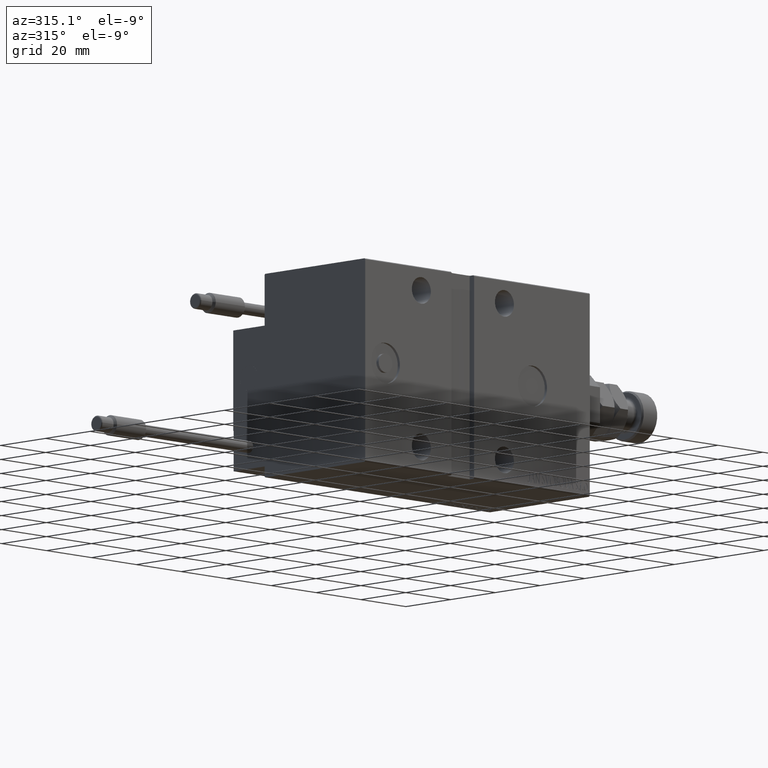
[diagram: clean part render]
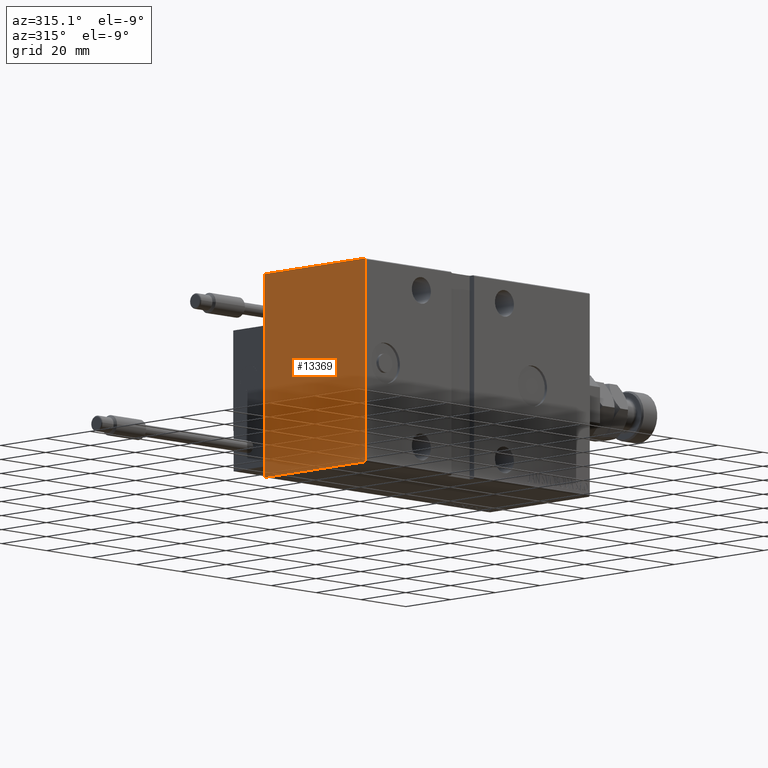
[diagram: same view with one face highlighted and labeled with its STEP entity id]
A machine part, auxiliary view. The second image highlights one B-rep face of the part: STEP entity #13369.
In plain terms, the highlighted planar face has unit normal (-1, 0, 0).
Its self-contained STEP definition (entity closure, byte-faithful):
#225 = DIRECTION ( 'NONE',  ( 0.000000000000000000, -0.7071067811865474617, -0.7071067811865474617 ) ) ;
#262 = CARTESIAN_POINT ( 'NONE',  ( 100.0000000000000000, 27.34999999999999076, -27.34999999999999076 ) ) ;
#1482 = EDGE_CURVE ( 'NONE', #30277, #32996, #15581, .T. ) ;
#1750 = DIRECTION ( 'NONE',  ( 0.000000000000000000, 0.000000000000000000, -1.000000000000000000 ) ) ;
#3538 = CARTESIAN_POINT ( 'NONE',  ( 100.0000000000000000, -27.34999999999998721, -27.34999999999998721 ) ) ;
#4229 = VERTEX_POINT ( 'NONE', #44923 ) ;
#4296 = VERTEX_POINT ( 'NONE', #21344 ) ;
#4498 = CARTESIAN_POINT ( 'NONE',  ( 100.0000000000000000, 22.19999999999997442, 32.50000000000000711 ) ) ;
#5071 = CARTESIAN_POINT ( 'NONE',  ( 100.0000000000000000, 22.49999999999999645, 32.50000000000000711 ) ) ;
#5830 = ORIENTED_EDGE ( 'NONE', *, *, #15563, .T. ) ;
#8366 = ORIENTED_EDGE ( 'NONE', *, *, #13349, .T. ) ;
#8481 = VERTEX_POINT ( 'NONE', #47297 ) ;
#9298 = CARTESIAN_POINT ( 'NONE',  ( 100.0000000000000000, -22.49999999999999645, -32.19999999999998153 ) ) ;
#11895 = ORIENTED_EDGE ( 'NONE', *, *, #28161, .T. ) ;
#12038 = DIRECTION ( 'NONE',  ( -0.000000000000000000, 0.7071067811865474617, 0.7071067811865474617 ) ) ;
#13349 = EDGE_CURVE ( 'NONE', #4229, #39744, #40036, .T. ) ;
#13369 = ADVANCED_FACE ( 'NONE', ( #29270 ), #24546, .T. ) ;
#14944 = ORIENTED_EDGE ( 'NONE', *, *, #1482, .T. ) ;
#14962 = VERTEX_POINT ( 'NONE', #50374 ) ;
#15563 = EDGE_CURVE ( 'NONE', #32996, #4296, #33126, .T. ) ;
#15581 = LINE ( 'NONE', #3538, #25132 ) ;
#15589 = CARTESIAN_POINT ( 'NONE',  ( 100.0000000000000000, -22.49999999999999645, 32.50000000000000000 ) ) ;
#15845 = DIRECTION ( 'NONE',  ( 0.000000000000000000, 0.000000000000000000, -1.000000000000000000 ) ) ;
#16135 = EDGE_CURVE ( 'NONE', #4296, #8481, #28816, .T. ) ;
#18341 = AXIS2_PLACEMENT_3D ( 'NONE', #37669, #40555, #1750 ) ;
#19713 = EDGE_CURVE ( 'NONE', #14962, #31391, #25084, .T. ) ;
#20896 = DIRECTION ( 'NONE',  ( -0.000000000000000000, -0.7071067811865392461, 0.7071067811865556774 ) ) ;
#21054 = DIRECTION ( 'NONE',  ( 0.000000000000000000, -1.000000000000000000, -1.541976423090495633E-16 ) ) ;
#21190 = CARTESIAN_POINT ( 'NONE',  ( 100.0000000000000000, 22.50000000000000355, -32.50000000000000000 ) ) ;
#21344 = CARTESIAN_POINT ( 'NONE',  ( 100.0000000000000000, 22.19999999999996732, -32.50000000000000000 ) ) ;
#23038 = CARTESIAN_POINT ( 'NONE',  ( 100.0000000000000000, -22.19999999999997442, -32.50000000000000000 ) ) ;
#24546 = PLANE ( 'NONE',  #18341 ) ;
#25084 = LINE ( 'NONE', #36667, #32835 ) ;
#25132 = VECTOR ( 'NONE', #43629, 1000.000000000000114 ) ;
#26010 = ORIENTED_EDGE ( 'NONE', *, *, #16135, .T. ) ;
#27411 = ORIENTED_EDGE ( 'NONE', *, *, #19713, .T. ) ;
#27646 = VECTOR ( 'NONE', #12038, 1000.000000000000114 ) ;
#28161 = EDGE_CURVE ( 'NONE', #31391, #30277, #35524, .T. ) ;
#28816 = LINE ( 'NONE', #262, #27646 ) ;
#29270 = FACE_OUTER_BOUND ( 'NONE', #38881, .T. ) ;
#30277 = VERTEX_POINT ( 'NONE', #9298 ) ;
#30476 = ORIENTED_EDGE ( 'NONE', *, *, #32440, .T. ) ;
#31391 = VERTEX_POINT ( 'NONE', #43464 ) ;
#31809 = EDGE_CURVE ( 'NONE', #39744, #14962, #42011, .T. ) ;
#32440 = EDGE_CURVE ( 'NONE', #8481, #4229, #33237, .T. ) ;
#32610 = CARTESIAN_POINT ( 'NONE',  ( 100.0000000000000000, -22.49999999999999645, -32.50000000000000000 ) ) ;
#32835 = VECTOR ( 'NONE', #225, 1000.000000000000114 ) ;
#32996 = VERTEX_POINT ( 'NONE', #23038 ) ;
#33126 = LINE ( 'NONE', #32610, #41020 ) ;
#33237 = LINE ( 'NONE', #21190, #39034 ) ;
#34700 = VECTOR ( 'NONE', #15845, 1000.000000000000000 ) ;
#35524 = LINE ( 'NONE', #15589, #34700 ) ;
#36667 = CARTESIAN_POINT ( 'NONE',  ( 100.0000000000000000, -27.34999999999998721, 27.34999999999998721 ) ) ;
#37195 = DIRECTION ( 'NONE',  ( 0.000000000000000000, -1.067522139062650425E-16, 1.000000000000000000 ) ) ;
#37669 = CARTESIAN_POINT ( 'NONE',  ( 100.0000000000000000, 0.000000000000000000, 0.000000000000000000 ) ) ;
#38881 = EDGE_LOOP ( 'NONE', ( #5830, #26010, #30476, #8366, #50795, #27411, #11895, #14944 ) ) ;
#39034 = VECTOR ( 'NONE', #37195, 1000.000000000000000 ) ;
#39744 = VERTEX_POINT ( 'NONE', #4498 ) ;
#39821 = VECTOR ( 'NONE', #21054, 1000.000000000000000 ) ;
#40036 = LINE ( 'NONE', #41335, #49313 ) ;
#40555 = DIRECTION ( 'NONE',  ( 1.000000000000000000, 0.000000000000000000, 0.000000000000000000 ) ) ;
#41020 = VECTOR ( 'NONE', #41261, 1000.000000000000000 ) ;
#41261 = DIRECTION ( 'NONE',  ( 0.000000000000000000, 1.000000000000000000, 0.000000000000000000 ) ) ;
#41335 = CARTESIAN_POINT ( 'NONE',  ( 100.0000000000000000, 27.35000000000025011, 27.34999999999961418 ) ) ;
#42011 = LINE ( 'NONE', #5071, #39821 ) ;
#43464 = CARTESIAN_POINT ( 'NONE',  ( 100.0000000000000000, -22.49999999999999645, 32.19999999999998153 ) ) ;
#43629 = DIRECTION ( 'NONE',  ( -0.000000000000000000, 0.7071067811865474617, -0.7071067811865474617 ) ) ;
#44923 = CARTESIAN_POINT ( 'NONE',  ( 100.0000000000000000, 22.49999999999999645, 32.19999999999998153 ) ) ;
#47297 = CARTESIAN_POINT ( 'NONE',  ( 100.0000000000000000, 22.50000000000000355, -32.19999999999998153 ) ) ;
#49313 = VECTOR ( 'NONE', #20896, 1000.000000000000114 ) ;
#50374 = CARTESIAN_POINT ( 'NONE',  ( 100.0000000000000000, -22.19999999999996021, 32.50000000000000000 ) ) ;
#50795 = ORIENTED_EDGE ( 'NONE', *, *, #31809, .T. ) ;